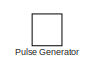
[diagram: root canvas - part 1/4, top left region]
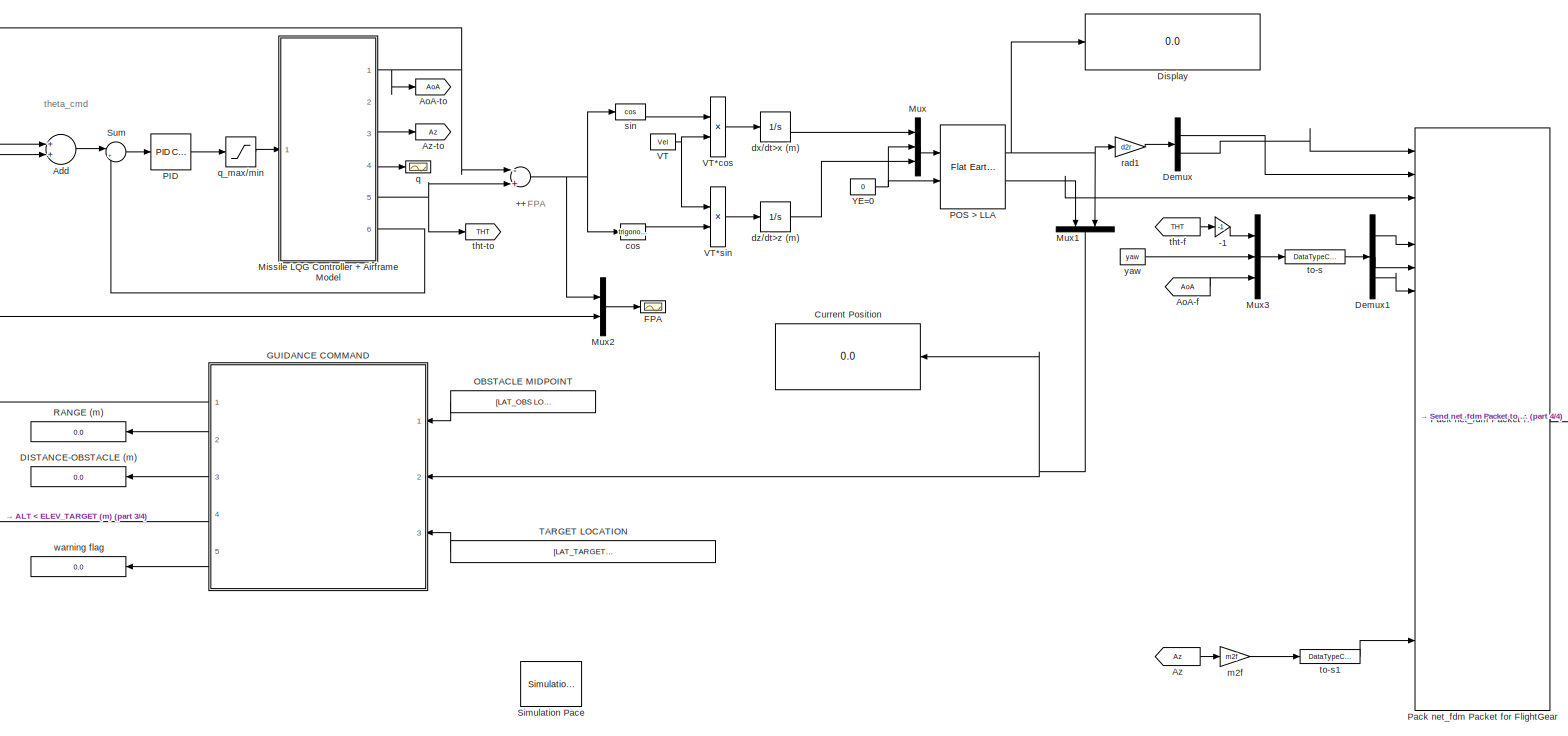
[diagram: root canvas - part 2/4, center side, full height]
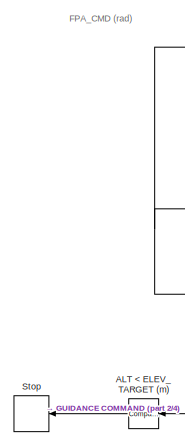
[diagram: root canvas - part 3/4, middle left region]
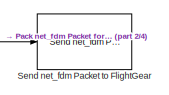
[diagram: root canvas - part 4/4, bottom right region]
MODEL slx_2eceb289d399
KIND model
CONFIG AbsTol = auto
CONFIG FixedStep = .01
CONFIG MaxStep = auto
CONFIG MinStep = auto
CONFIG RelTol = 1e-3
CONFIG SampleTimeConstraint = Unconstrained
CONFIG Solver = ode45
CONFIG SolverMode = Auto
CONFIG SolverName = ode45
CONFIG StartTime = 0.0
CONFIG StopTime = Inf
BLOCK [Sum] ++
  InputSameDT = off
  Inputs = -+
  OutDataTypeStr = Inherit: Inherit via internal rule
  Ports = [2, 1]
  SaturateOnIntegerOverflow = off
BLOCK [Gain] -1
  Gain = -1
  OutDataTypeStr = Inherit: Inherit via internal rule
  ParamDataTypeStr = Inherit: Inherit via internal rule
  SaturateOnIntegerOverflow = off
BLOCK [Reference] ALT < ELEV_TARGET (m)  REF=simulink/Logic and Bit
Operations/Compare
To Constant
  OutDataTypeStr = boolean
  Ports = [1, 1]
  SourceBlock = simulink/Logic and Bit\nOperations/Compare\nTo Constant
  SourceType = Compare To Constant
  ZeroCross = on
  const = ELEV_TARGET
  relop = <=
BLOCK [Sum] Add
  InputSameDT = off
  OutDataTypeStr = Inherit: Inherit via internal rule
  Ports = [2, 1]
  SaturateOnIntegerOverflow = off
BLOCK [From] AoA-f
  GotoTag = AoA
BLOCK [Goto] AoA-to
  GotoTag = AoA
BLOCK [From] Az
  GotoTag = Az
BLOCK [Goto] Az-to
  GotoTag = Az
BLOCK [Display] Current Position
  Decimation = 1
  Format = long
  Ports = [1]
BLOCK [Display] DISTANCE-OBSTACLE (m)
  Decimation = 1
  Ports = [1]
BLOCK [Demux] Demux
  DisplayOption = bar
  Outputs = 2
  Ports = [1, 2]
BLOCK [Demux] Demux1
  DisplayOption = bar
  Outputs = 3
  Ports = [1, 3]
BLOCK [Display] Display
  Decimation = 1
  Format = long
  Ports = [1]
BLOCK [Scope] FPA
  Floating = off
  LimitDataPoints = off
  NumInputPorts = 1
  Ports = [1]
  SaveName = ScopeData4
  TimeRange = 80
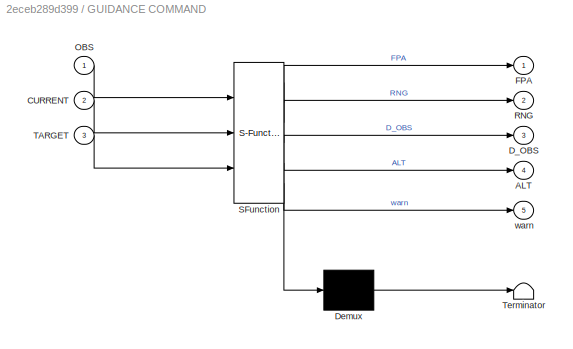
BLOCK [SubSystem] GUIDANCE COMMAND
  ErrorFcn = Stateflow.Translate.translate
  PermitHierarchicalResolution = ExplicitOnly
  Ports = [3, 5]
  RequestExecContextInheritance = off
  SFBlockType = MATLAB Function
  TreatAsAtomicUnit = on
BLOCK [Demux] GUIDANCE COMMAND/ Demux 
  Outputs = 1
  Ports = [1, 1]
BLOCK [S-Function] GUIDANCE COMMAND/ SFunction 
  EnableBusSupport = on
  FunctionName = sf_sfun
  PortCounts = [3 6]
  Ports = [3, 6]
  Tag = Stateflow S-Function simulink_model_FG 1
BLOCK [Terminator] GUIDANCE COMMAND/ Terminator 
BLOCK [Outport] GUIDANCE COMMAND/ALT
  IconDisplay = Port number
  Port = 4
BLOCK [Inport] GUIDANCE COMMAND/CURRENT
  IconDisplay = Port number
  Port = 2
BLOCK [Outport] GUIDANCE COMMAND/D_OBS
  IconDisplay = Port number
  Port = 3
BLOCK [Outport] GUIDANCE COMMAND/FPA
  IconDisplay = Port number
BLOCK [Inport] GUIDANCE COMMAND/OBS
  IconDisplay = Port number
BLOCK [Outport] GUIDANCE COMMAND/RNG
  IconDisplay = Port number
  Port = 2
BLOCK [Inport] GUIDANCE COMMAND/TARGET
  IconDisplay = Port number
  Port = 3
BLOCK [Outport] GUIDANCE COMMAND/warn
  IconDisplay = Port number
  Port = 5
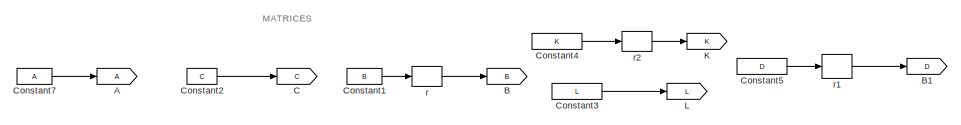
[diagram: Missile LQG Controller + Airframe Model - part 1/4, top center region]
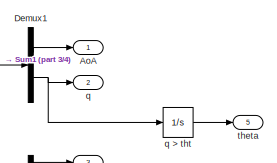
[diagram: Missile LQG Controller + Airframe Model - part 2/4, top right region]
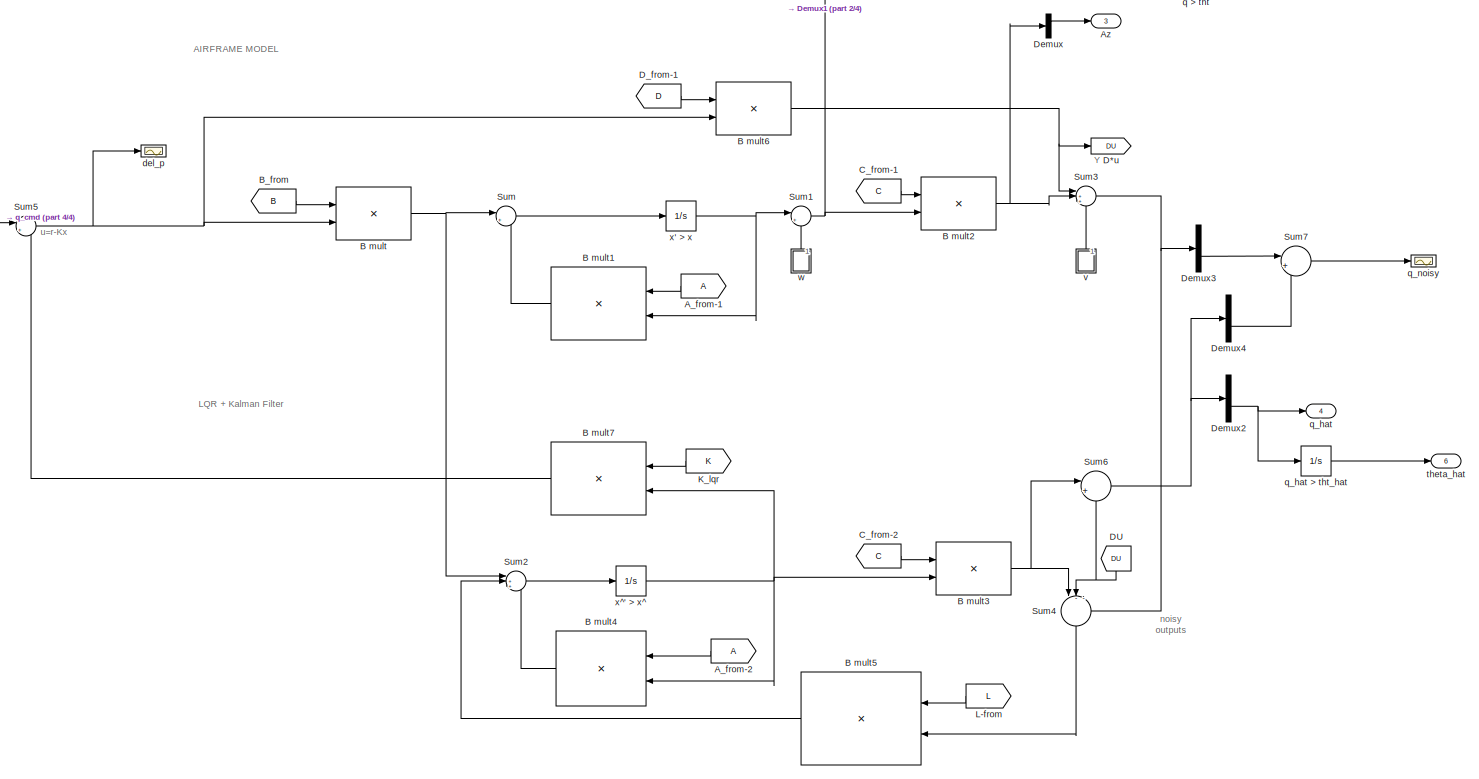
[diagram: Missile LQG Controller + Airframe Model - part 3/4, full width, middle band]
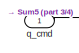
[diagram: Missile LQG Controller + Airframe Model - part 4/4, middle left region]
BLOCK [SubSystem] Missile LQG Controller + Airframe Model
  Ports = [1, 6]
  RequestExecContextInheritance = off
BLOCK [Goto] Missile LQG Controller + Airframe Model/A
BLOCK [From] Missile LQG Controller + Airframe Model/A_from-1
BLOCK [From] Missile LQG Controller + Airframe Model/A_from-2
BLOCK [Outport] Missile LQG Controller + Airframe Model/AoA
  IconDisplay = Port number
BLOCK [Outport] Missile LQG Controller + Airframe Model/Az
  IconDisplay = Port number
  Port = 3
BLOCK [Goto] Missile LQG Controller + Airframe Model/B
  GotoTag = B
BLOCK [Product] Missile LQG Controller + Airframe Model/B mult
  InputSameDT = off
  Multiplication = Matrix(*)
  OutDataTypeStr = Inherit: Inherit via internal rule
  Ports = [2, 1]
  SaturateOnIntegerOverflow = off
BLOCK [Product] Missile LQG Controller + Airframe Model/B mult1
  InputSameDT = off
  Multiplication = Matrix(*)
  OutDataTypeStr = Inherit: Inherit via internal rule
  Ports = [2, 1]
  SaturateOnIntegerOverflow = off
BLOCK [Product] Missile LQG Controller + Airframe Model/B mult2
  InputSameDT = off
  Multiplication = Matrix(*)
  OutDataTypeStr = Inherit: Inherit via internal rule
  Ports = [2, 1]
  SaturateOnIntegerOverflow = off
BLOCK [Product] Missile LQG Controller + Airframe Model/B mult3
  InputSameDT = off
  Multiplication = Matrix(*)
  OutDataTypeStr = Inherit: Inherit via internal rule
  Ports = [2, 1]
  SaturateOnIntegerOverflow = off
BLOCK [Product] Missile LQG Controller + Airframe Model/B mult4
  InputSameDT = off
  Multiplication = Matrix(*)
  OutDataTypeStr = Inherit: Inherit via internal rule
  Ports = [2, 1]
  SaturateOnIntegerOverflow = off
BLOCK [Product] Missile LQG Controller + Airframe Model/B mult5
  InputSameDT = off
  Multiplication = Matrix(*)
  OutDataTypeStr = Inherit: Inherit via internal rule
  Ports = [2, 1]
  SaturateOnIntegerOverflow = off
BLOCK [Product] Missile LQG Controller + Airframe Model/B mult6
  InputSameDT = off
  Multiplication = Matrix(*)
  OutDataTypeStr = Inherit: Inherit via internal rule
  Ports = [2, 1]
  SaturateOnIntegerOverflow = off
BLOCK [Product] Missile LQG Controller + Airframe Model/B mult7
  InputSameDT = off
  Multiplication = Matrix(*)
  OutDataTypeStr = Inherit: Inherit via internal rule
  Ports = [2, 1]
  SaturateOnIntegerOverflow = off
BLOCK [Goto] Missile LQG Controller + Airframe Model/B1
  GotoTag = D
BLOCK [From] Missile LQG Controller + Airframe Model/B_from
  GotoTag = B
BLOCK [Goto] Missile LQG Controller + Airframe Model/C
  GotoTag = C
BLOCK [From] Missile LQG Controller + Airframe Model/C_from-1
  GotoTag = C
BLOCK [From] Missile LQG Controller + Airframe Model/C_from-2
  GotoTag = C
BLOCK [Constant] Missile LQG Controller + Airframe Model/Constant1
  Value = B
BLOCK [Constant] Missile LQG Controller + Airframe Model/Constant2
  Value = C
BLOCK [Constant] Missile LQG Controller + Airframe Model/Constant3
  Value = L
BLOCK [Constant] Missile LQG Controller + Airframe Model/Constant4
  Value = K
BLOCK [Constant] Missile LQG Controller + Airframe Model/Constant5
  Value = D
BLOCK [Constant] Missile LQG Controller + Airframe Model/Constant7
  Value = A
BLOCK [Goto] Missile LQG Controller + Airframe Model/D*u
  GotoTag = DU
BLOCK [From] Missile LQG Controller + Airframe Model/DU
  GotoTag = DU
BLOCK [From] Missile LQG Controller + Airframe Model/D_from-1
  GotoTag = D
BLOCK [Demux] Missile LQG Controller + Airframe Model/Demux
  DisplayOption = bar
  Outputs = 2
  Ports = [1, 2]
BLOCK [Demux] Missile LQG Controller + Airframe Model/Demux1
  DisplayOption = bar
  Outputs = 2
  Ports = [1, 2]
BLOCK [Demux] Missile LQG Controller + Airframe Model/Demux2
  DisplayOption = bar
  Outputs = 2
  Ports = [1, 2]
BLOCK [Demux] Missile LQG Controller + Airframe Model/Demux3
  DisplayOption = bar
  Outputs = 2
  Ports = [1, 2]
BLOCK [Demux] Missile LQG Controller + Airframe Model/Demux4
  DisplayOption = bar
  Outputs = 2
  Ports = [1, 2]
BLOCK [Goto] Missile LQG Controller + Airframe Model/K
  GotoTag = K
BLOCK [From] Missile LQG Controller + Airframe Model/K_lqr
  GotoTag = K
BLOCK [Goto] Missile LQG Controller + Airframe Model/L
  GotoTag = L
BLOCK [From] Missile LQG Controller + Airframe Model/L-from
  GotoTag = L
BLOCK [Sum] Missile LQG Controller + Airframe Model/Sum
  IconShape = round
  InputSameDT = off
  Inputs = |++
  OutDataTypeStr = Inherit: Inherit via internal rule
  Ports = [2, 1]
  SaturateOnIntegerOverflow = off
BLOCK [Sum] Missile LQG Controller + Airframe Model/Sum1
  IconShape = round
  InputSameDT = off
  Inputs = |++
  OutDataTypeStr = Inherit: Inherit via internal rule
  Ports = [2, 1]
  SaturateOnIntegerOverflow = off
BLOCK [Sum] Missile LQG Controller + Airframe Model/Sum2
  IconShape = round
  InputSameDT = off
  Inputs = |+++
  OutDataTypeStr = Inherit: Inherit via internal rule
  Ports = [3, 1]
  SaturateOnIntegerOverflow = off
BLOCK [Sum] Missile LQG Controller + Airframe Model/Sum3
  IconShape = round
  InputSameDT = off
  Inputs = |+++
  OutDataTypeStr = Inherit: Inherit via internal rule
  Ports = [3, 1]
  SaturateOnIntegerOverflow = off
BLOCK [Sum] Missile LQG Controller + Airframe Model/Sum4
  IconShape = round
  InputSameDT = off
  Inputs = |--+
  OutDataTypeStr = Inherit: Inherit via internal rule
  Ports = [3, 1]
  SaturateOnIntegerOverflow = off
BLOCK [Sum] Missile LQG Controller + Airframe Model/Sum5
  IconShape = round
  InputSameDT = off
  Inputs = |+-
  OutDataTypeStr = Inherit: Inherit via internal rule
  Ports = [2, 1]
  SaturateOnIntegerOverflow = off
BLOCK [Sum] Missile LQG Controller + Airframe Model/Sum6
  IconShape = round
  InputSameDT = off
  Inputs = |++
  OutDataTypeStr = Inherit: Inherit via internal rule
  Ports = [2, 1]
  SaturateOnIntegerOverflow = off
BLOCK [Sum] Missile LQG Controller + Airframe Model/Sum7
  IconShape = round
  InputSameDT = off
  Inputs = |+-
  OutDataTypeStr = Inherit: Inherit via internal rule
  Ports = [2, 1]
  SaturateOnIntegerOverflow = off
BLOCK [Scope] Missile LQG Controller + Airframe Model/del_p
  Floating = off
  LimitDataPoints = off
  NumInputPorts = 1
  Ports = [1]
  TimeRange = 78
BLOCK [Outport] Missile LQG Controller + Airframe Model/q
  IconDisplay = Port number
  Port = 2
BLOCK [Integrator] Missile LQG Controller + Airframe Model/q > tht
  Ports = [1, 1]
BLOCK [Inport] Missile LQG Controller + Airframe Model/q_cmd
  IconDisplay = Port number
BLOCK [Outport] Missile LQG Controller + Airframe Model/q_hat
  IconDisplay = Port number
  Port = 4
BLOCK [Integrator] Missile LQG Controller + Airframe Model/q_hat > tht_hat
  Ports = [1, 1]
BLOCK [Scope] Missile LQG Controller + Airframe Model/q_noisy
  Floating = off
  LimitDataPoints = off
  NumInputPorts = 1
  Ports = [1]
  SaveName = ScopeData3
  TimeRange = 78
BLOCK [Reshape] Missile LQG Controller + Airframe Model/r
  OutputDimensionality = Customize
  OutputDimensions = [2,1]
  Ports = [1, 1]
BLOCK [Reshape] Missile LQG Controller + Airframe Model/r1
  OutputDimensionality = Customize
  OutputDimensions = [2,1]
  Ports = [1, 1]
BLOCK [Reshape] Missile LQG Controller + Airframe Model/r2
  OutputDimensionality = Customize
  OutputDimensions = [1,2]
  Ports = [1, 1]
BLOCK [Outport] Missile LQG Controller + Airframe Model/theta
  IconDisplay = Port number
  Port = 5
BLOCK [Outport] Missile LQG Controller + Airframe Model/theta_hat
  IconDisplay = Port number
  Port = 6
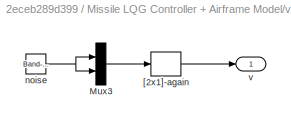
BLOCK [SubSystem] Missile LQG Controller + Airframe Model/v
  Ports = [0, 1]
  RequestExecContextInheritance = off
BLOCK [Mux] Missile LQG Controller + Airframe Model/v/Mux3
  DisplayOption = bar
  Inputs = 2
  Ports = [2, 1]
BLOCK [Reshape] Missile LQG Controller + Airframe Model/v/[2x1]-again
  OutputDimensionality = Customize
  OutputDimensions = [2,1]
  Ports = [1, 1]
BLOCK [Reference] Missile LQG Controller + Airframe Model/v/noise  REF=simulink/Sources/Band-Limited
White Noise
  Cov = [0.00001]
  Ports = [0, 1]
  SourceBlock = simulink/Sources/Band-Limited\nWhite Noise
  SourceType = Band-Limited White Noise.
  Ts = dT2
  VectorParams1D = on
  seed = [23341]
BLOCK [Outport] Missile LQG Controller + Airframe Model/v/v
  IconDisplay = Port number
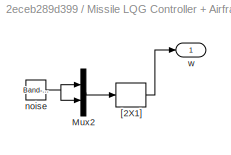
BLOCK [SubSystem] Missile LQG Controller + Airframe Model/w
  Ports = [0, 1]
  RequestExecContextInheritance = off
BLOCK [Mux] Missile LQG Controller + Airframe Model/w/Mux2
  DisplayOption = bar
  Inputs = 2
  Ports = [2, 1]
BLOCK [Reshape] Missile LQG Controller + Airframe Model/w/[2X1]
  OutputDimensionality = Customize
  OutputDimensions = [2,1]
  Ports = [1, 1]
BLOCK [Reference] Missile LQG Controller + Airframe Model/w/noise  REF=simulink/Sources/Band-Limited
White Noise
  Cov = 0.00000001
  Ports = [0, 1]
  SourceBlock = simulink/Sources/Band-Limited\nWhite Noise
  SourceType = Band-Limited White Noise.
  Ts = dT1
  VectorParams1D = on
  seed = [23341]
BLOCK [Outport] Missile LQG Controller + Airframe Model/w/w
  IconDisplay = Port number
BLOCK [Integrator] Missile LQG Controller + Airframe Model/x' > x
  Ports = [1, 1]
BLOCK [Integrator] Missile LQG Controller + Airframe Model/x^' > x^
  InitialCondition = [0.01;0.01]
  Ports = [1, 1]
BLOCK [Mux] Mux
  DisplayOption = bar
  Inputs = 3
  Ports = [3, 1]
BLOCK [Mux] Mux1
  DisplayOption = bar
  Inputs = 2
  Ports = [2, 1]
BLOCK [Mux] Mux2
  DisplayOption = bar
  Inputs = 2
  Ports = [2, 1]
BLOCK [Mux] Mux3
  DisplayOption = bar
  Inputs = 3
  Ports = [3, 1]
BLOCK [Constant] OBSTACLE MIDPOINT
  Value = [LAT_OBS LON_OBS]
BLOCK [Reference] PID  REF=simulink/Continuous/PID Controller
  AntiWindupMode = none
  Controller = PID
  ControllerParametersSource = internal
  D = 0
  DGainOutDataTypeStr = Inherit: Inherit via internal rule
  DOutDataTypeStr = Inherit: Inherit via internal rule
  DOutMax = []
  DOutMin = []
  DParamDataTypeStr = Inherit: Inherit via internal rule
  DParamMax = []
  DParamMin = []
  DProdOutDataTypeStr = Inherit: Inherit via internal rule
  DifferentiatorICPrevScaledInput = 0
  DifferentiatorOutDataTypeStr = Inherit: Inherit via internal rule
  DifferentiatorOutMax = []
  DifferentiatorOutMin = []
  ExternalReset = none
  FilterContinuousStateAttributes = ''
  FilterMethod = Forward Euler
  FilterOutDataTypeStr = Inherit: Inherit via internal rule
  FilterOutMax = []
  FilterOutMin = []
  FilterRTWStateStorageClass = Auto
  FilterStateMustResolveToSignalObject = off
  Form = Parallel
  I = 0
  IGainOutDataTypeStr = Inherit: Inherit via internal rule
  IOutDataTypeStr = Inherit: Inherit via internal rule
  IOutMax = []
  IOutMin = []
  IParamDataTypeStr = Inherit: Inherit via internal rule
  IParamMax = []
  IParamMin = []
  IProdOutDataTypeStr = Inherit: Inherit via internal rule
  IgnoreLimit = off
  InitialConditionForFilter = 0
  InitialConditionForIntegrator = 0
  InitialConditionSource = internal
  IntegratorContinuousStateAttributes = ''
  IntegratorMethod = Forward Euler
  IntegratorOutDataTypeStr = Inherit: Inherit via internal rule
  IntegratorOutMax = []
  IntegratorOutMin = []
  IntegratorRTWStateStorageClass = Auto
  IntegratorStateMustResolveToSignalObject = off
  Kb = 1
  KbOutDataTypeStr = Inherit: Inherit via internal rule
  KbOutMax = []
  KbOutMin = []
  KbParamDataTypeStr = Inherit: Inherit via internal rule
  KbParamMax = []
  KbParamMin = []
  Kt = 1
  KtOutDataTypeStr = Inherit: Inherit via internal rule
  KtOutMax = []
  KtOutMin = []
  KtParamDataTypeStr = Inherit: Inherit via internal rule
  KtParamMax = []
  KtParamMin = []
  LimitOutput = off
  LinearizeAsGain = on
  LockScale = off
  LowerSaturationLimit = -inf
  N = 100
  NGainOutDataTypeStr = Inherit: Inherit via internal rule
  NOutDataTypeStr = Inherit: Inherit via internal rule
  NOutMax = []
  NOutMin = []
  NParamDataTypeStr = Inherit: Inherit via internal rule
  NParamMax = []
  NParamMin = []
  NProdOutDataTypeStr = Inherit: Inherit via internal rule
  P = -1.0
  PGainOutDataTypeStr = Inherit: Inherit via internal rule
  POutDataTypeStr = Inherit: Inherit via internal rule
  POutMax = []
  POutMin = []
  PParamDataTypeStr = Inherit: Inherit via internal rule
  PParamMax = []
  PParamMin = []
  PProdOutDataTypeStr = Inherit: Inherit via internal rule
  Ports = [1, 1]
  RndMeth = Floor
  SampleTime = -1
  SaturateOnIntegerOverflow = off
  SaturationOutDataTypeStr = Inherit: Same as input
  SaturationOutMax = []
  SaturationOutMin = []
  SourceBlock = simulink/Continuous/PID Controller
  SourceType = PID 1dof
  SumAccumDataTypeStr = Inherit: Inherit via internal rule
  SumDAccumDataTypeStr = Inherit: Inherit via internal rule
  SumDOutDataTypeStr = Inherit: Inherit via internal rule
  SumDOutMax = []
  SumDOutMin = []
  SumI1AccumDataTypeStr = Inherit: Inherit via internal rule
  SumI1OutDataTypeStr = Inherit: Inherit via internal rule
  SumI1OutMax = []
  SumI1OutMin = []
  SumI2AccumDataTypeStr = Inherit: Inherit via internal rule
  SumI2OutDataTypeStr = Inherit: Inherit via internal rule
  SumI2OutMax = []
  SumI2OutMin = []
  SumI3AccumDataTypeStr = Inherit: Inherit via internal rule
  SumI3OutDataTypeStr = Inherit: Inherit via internal rule
  SumI3OutMax = []
  SumI3OutMin = []
  SumOutDataTypeStr = Inherit: Inherit via internal rule
  SumOutMax = []
  SumOutMin = []
  TimeDomain = Continuous-time
  TrackingMode = off
  UpperSaturationLimit = inf
  UseFilter = on
  ZeroCross = on
BLOCK [Reference] POS > LLA  REF=aerolibtransform2/Flat Earth to LLA
  F = 1/298.257223563
  LL0 = [LAT_INIT LON_INIT]
  Ports = [2, 2]
  R = 6378137
  SourceBlock = aerolibtransform2/Flat Earth to LLA
  SourceType = Flat Earth to LLA
  psi = yaw_init
  ptype = Earth (WGS84)
  units = Metric (MKS)
BLOCK [Reference] Pack net_fdm Packet for FlightGear  REF=aerolibfltsims/Pack
net_fdm Packet
for FlightGear
  AttributesFormatString = Version Selected: %<FlightGearVersion>
  FlightGearVersion = v3.0
  Ports = [24, 1]
  SampleTime = 1/30
  ShowControlSurfacePositionInputs = off
  ShowEngineFuelInputs = off
  ShowEnvironmentInputs = off
  ShowLandingGearInputs = off
  ShowPositionAttitudeInputs = on
  ShowVelocityAccelerationInputs = on
  SourceBlock = aerolibfltsims/Pack\nnet_fdm Packet\nfor FlightGear
  SourceType = FlightGearPackNetFdm
BLOCK [DiscretePulseGenerator] Pulse Generator
  Amplitude = 0.75
  Commented = on
  Period = 60
  Ports = [0, 1]
  PulseType = Time based
  PulseWidth = 50
BLOCK [Display] RANGE (m)
  Decimation = 1
  Ports = [1]
BLOCK [Reference] Send net_fdm Packet to FlightGear  REF=aerolibfltsims/Send
net_fdm Packet
to FlightGear
  DestinationIpAddress = 127.0.0.1
  DestinationPort = 5502
  LocalIpPort = -1
  Ports = [1]
  SampleTime = 1/30
  SourceBlock = aerolibfltsims/Send\nnet_fdm Packet\nto FlightGear
  SourceType = FlightGearSendNetFdm
  varLen = off
BLOCK [Reference] Simulation Pace  REF=aerolibanimutils/Simulation Pace
  AttributesFormatString = %<SimulationPace> sec/sec
  OutputPaceError = off
  Ports = []
  SampleTime = 1/30
  SimulationPace = 1
  SleepMode = MATLAB Thread
  SourceBlock = aerolibanimutils/Simulation Pace
  SourceType = Simulation Pace
BLOCK [Stop] Stop
BLOCK [Sum] Sum
  IconShape = round
  InputSameDT = off
  Inputs = |+-
  OutDataTypeStr = Inherit: Inherit via internal rule
  Ports = [2, 1]
  SaturateOnIntegerOverflow = off
BLOCK [Constant] TARGET LOCATION
  Value = [LAT_TARGET LON_TARGET ELEV_TARGET]
BLOCK [Constant] VT
  Value = Vel
BLOCK [Product] VT*cos
  InputSameDT = off
  OutDataTypeStr = Inherit: Inherit via internal rule
  Ports = [2, 1]
  RndMeth = Floor
  SaturateOnIntegerOverflow = off
BLOCK [Product] VT*sin
  InputSameDT = off
  OutDataTypeStr = Inherit: Inherit via internal rule
  Ports = [2, 1]
  RndMeth = Floor
  SaturateOnIntegerOverflow = off
BLOCK [Constant] YE=0
  Value = 0
BLOCK [Trigonometry] cos
  Ports = [1, 1]
BLOCK [Integrator] dx//dt>x (m)
  Ports = [1, 1]
BLOCK [Integrator] dz//dt>z (m)
  InitialCondition = -ELEV_INIT
  Ports = [1, 1]
BLOCK [Gain] m2f
  Gain = m2f
  OutDataTypeStr = Inherit: Inherit via internal rule
  ParamDataTypeStr = Inherit: Inherit via internal rule
  SaturateOnIntegerOverflow = off
BLOCK [Scope] q
  Floating = off
  LimitDataPoints = off
  NumInputPorts = 1
  Ports = [1]
  SaveName = ScopeData1
  TimeRange = 78
BLOCK [Saturate] q_max//min
  InputPortMap = u0
  Ports = [1, 1]
BLOCK [Gain] rad1
  Gain = d2r
  OutDataTypeStr = Inherit: Inherit via internal rule
  ParamDataTypeStr = Inherit: Inherit via internal rule
  SaturateOnIntegerOverflow = off
BLOCK [Trigonometry] sin
  Operator = cos
  Ports = [1, 1]
BLOCK [From] tht-f
  GotoTag = THT
BLOCK [Goto] tht-to
  GotoTag = THT
BLOCK [DataTypeConversion] to-s
  OutDataTypeStr = single
  RndMeth = Floor
  SaturateOnIntegerOverflow = off
BLOCK [DataTypeConversion] to-s1
  OutDataTypeStr = single
  RndMeth = Floor
  SaturateOnIntegerOverflow = off
BLOCK [Display] warning flag
  Decimation = 1
  Ports = [1]
BLOCK [Constant] yaw
  Value = yaw
ANNOTATION (root): FPA
ANNOTATION (root): FPA_CMD (rad)
ANNOTATION (root): theta_cmd
ANNOTATION Missile LQG Controller + Airframe Model: noisy outputs
ANNOTATION Missile LQG Controller + Airframe Model: MATRICES
ANNOTATION Missile LQG Controller + Airframe Model: AIRFRAME MODEL
ANNOTATION Missile LQG Controller + Airframe Model: LQR + Kalman Filter
ANNOTATION Missile LQG Controller + Airframe Model: Y
ANNOTATION Missile LQG Controller + Airframe Model: u=r-Kx
NET ++:1 -> Mux2:1, cos:1, sin:1
LINE -1:1 -> Mux3:1
LINE ALT < ELEV_TARGET (m):1 -> Stop:1
LINE Add:1 -> Sum:1
LINE AoA-f:1 -> Mux3:3
LINE Az:1 -> m2f:1
LINE Demux1:1 -> Pack net_fdm Packet for FlightGear:5
LINE Demux1:2 -> Pack net_fdm Packet for FlightGear:6
LINE Demux1:3 -> Pack net_fdm Packet for FlightGear:7
LINE Demux:1 -> Pack net_fdm Packet for FlightGear:2
LINE Demux:2 -> Pack net_fdm Packet for FlightGear:1
NET GUIDANCE COMMAND:1 -> Add:2, Mux2:2
LINE GUIDANCE COMMAND:2 -> RANGE (m):1
LINE GUIDANCE COMMAND:3 -> DISTANCE-OBSTACLE (m):1
LINE GUIDANCE COMMAND:4 -> ALT < ELEV_TARGET (m):1
LINE GUIDANCE COMMAND:5 -> warning flag:1
LINE Missile LQG Controller + Airframe Model/A_from-1:1 -> Missile LQG Controller + Airframe Model/B mult1:1
LINE Missile LQG Controller + Airframe Model/A_from-2:1 -> Missile LQG Controller + Airframe Model/B mult4:1
LINE Missile LQG Controller + Airframe Model/B mult1:1 -> Missile LQG Controller + Airframe Model/Sum:2
NET Missile LQG Controller + Airframe Model/B mult2:1 -> Missile LQG Controller + Airframe Model/Demux:1, Missile LQG Controller + Airframe Model/Sum3:2
NET Missile LQG Controller + Airframe Model/B mult3:1 -> Missile LQG Controller + Airframe Model/Sum4:1, Missile LQG Controller + Airframe Model/Sum6:1
LINE Missile LQG Controller + Airframe Model/B mult4:1 -> Missile LQG Controller + Airframe Model/Sum2:3
LINE Missile LQG Controller + Airframe Model/B mult5:1 -> Missile LQG Controller + Airframe Model/Sum2:2
NET Missile LQG Controller + Airframe Model/B mult6:1 -> Missile LQG Controller + Airframe Model/D*u:1, Missile LQG Controller + Airframe Model/Sum3:1
LINE Missile LQG Controller + Airframe Model/B mult7:1 -> Missile LQG Controller + Airframe Model/Sum5:2
NET Missile LQG Controller + Airframe Model/B mult:1 -> Missile LQG Controller + Airframe Model/Sum2:1, Missile LQG Controller + Airframe Model/Sum:1
LINE Missile LQG Controller + Airframe Model/B_from:1 -> Missile LQG Controller + Airframe Model/B mult:1
LINE Missile LQG Controller + Airframe Model/C_from-1:1 -> Missile LQG Controller + Airframe Model/B mult2:1
LINE Missile LQG Controller + Airframe Model/C_from-2:1 -> Missile LQG Controller + Airframe Model/B mult3:1
LINE Missile LQG Controller + Airframe Model/Constant1:1 -> Missile LQG Controller + Airframe Model/r:1
LINE Missile LQG Controller + Airframe Model/Constant2:1 -> Missile LQG Controller + Airframe Model/C:1
LINE Missile LQG Controller + Airframe Model/Constant3:1 -> Missile LQG Controller + Airframe Model/L:1
LINE Missile LQG Controller + Airframe Model/Constant4:1 -> Missile LQG Controller + Airframe Model/r2:1
LINE Missile LQG Controller + Airframe Model/Constant5:1 -> Missile LQG Controller + Airframe Model/r1:1
LINE Missile LQG Controller + Airframe Model/Constant7:1 -> Missile LQG Controller + Airframe Model/A:1
NET Missile LQG Controller + Airframe Model/DU:1 -> Missile LQG Controller + Airframe Model/Sum4:2, Missile LQG Controller + Airframe Model/Sum6:2
LINE Missile LQG Controller + Airframe Model/D_from-1:1 -> Missile LQG Controller + Airframe Model/B mult6:1
LINE Missile LQG Controller + Airframe Model/Demux1:1 -> Missile LQG Controller + Airframe Model/AoA:1
NET Missile LQG Controller + Airframe Model/Demux1:2 -> Missile LQG Controller + Airframe Model/q > tht:1, Missile LQG Controller + Airframe Model/q:1
NET Missile LQG Controller + Airframe Model/Demux2:2 -> Missile LQG Controller + Airframe Model/q_hat > tht_hat:1, Missile LQG Controller + Airframe Model/q_hat:1
LINE Missile LQG Controller + Airframe Model/Demux3:2 -> Missile LQG Controller + Airframe Model/Sum7:1
LINE Missile LQG Controller + Airframe Model/Demux4:2 -> Missile LQG Controller + Airframe Model/Sum7:2
LINE Missile LQG Controller + Airframe Model/Demux:1 -> Missile LQG Controller + Airframe Model/Az:1
LINE Missile LQG Controller + Airframe Model/K_lqr:1 -> Missile LQG Controller + Airframe Model/B mult7:1
LINE Missile LQG Controller + Airframe Model/L-from:1 -> Missile LQG Controller + Airframe Model/B mult5:1
NET Missile LQG Controller + Airframe Model/Sum1:1 -> Missile LQG Controller + Airframe Model/B mult2:2, Missile LQG Controller + Airframe Model/Demux1:1
LINE Missile LQG Controller + Airframe Model/Sum2:1 -> Missile LQG Controller + Airframe Model/x^' > x^:1
NET Missile LQG Controller + Airframe Model/Sum3:1 -> Missile LQG Controller + Airframe Model/Demux3:1, Missile LQG Controller + Airframe Model/Sum4:3
LINE Missile LQG Controller + Airframe Model/Sum4:1 -> Missile LQG Controller + Airframe Model/B mult5:2
NET Missile LQG Controller + Airframe Model/Sum5:1 -> Missile LQG Controller + Airframe Model/B mult6:2, Missile LQG Controller + Airframe Model/B mult:2, Missile LQG Controller + Airframe Model/del_p:1
NET Missile LQG Controller + Airframe Model/Sum6:1 -> Missile LQG Controller + Airframe Model/Demux2:1, Missile LQG Controller + Airframe Model/Demux4:1
LINE Missile LQG Controller + Airframe Model/Sum7:1 -> Missile LQG Controller + Airframe Model/q_noisy:1
LINE Missile LQG Controller + Airframe Model/Sum:1 -> Missile LQG Controller + Airframe Model/x' > x:1
LINE Missile LQG Controller + Airframe Model/q > tht:1 -> Missile LQG Controller + Airframe Model/theta:1
LINE Missile LQG Controller + Airframe Model/q_cmd:1 -> Missile LQG Controller + Airframe Model/Sum5:1
LINE Missile LQG Controller + Airframe Model/q_hat > tht_hat:1 -> Missile LQG Controller + Airframe Model/theta_hat:1
LINE Missile LQG Controller + Airframe Model/r1:1 -> Missile LQG Controller + Airframe Model/B1:1
LINE Missile LQG Controller + Airframe Model/r2:1 -> Missile LQG Controller + Airframe Model/K:1
LINE Missile LQG Controller + Airframe Model/r:1 -> Missile LQG Controller + Airframe Model/B:1
LINE Missile LQG Controller + Airframe Model/v/Mux3:1 -> Missile LQG Controller + Airframe Model/v/[2x1]-again:1
LINE Missile LQG Controller + Airframe Model/v/[2x1]-again:1 -> Missile LQG Controller + Airframe Model/v/v:1
NET Missile LQG Controller + Airframe Model/v/noise:1 -> Missile LQG Controller + Airframe Model/v/Mux3:1, Missile LQG Controller + Airframe Model/v/Mux3:2
LINE Missile LQG Controller + Airframe Model/v:1 -> Missile LQG Controller + Airframe Model/Sum3:3
LINE Missile LQG Controller + Airframe Model/w/Mux2:1 -> Missile LQG Controller + Airframe Model/w/[2X1]:1
LINE Missile LQG Controller + Airframe Model/w/[2X1]:1 -> Missile LQG Controller + Airframe Model/w/w:1
NET Missile LQG Controller + Airframe Model/w/noise:1 -> Missile LQG Controller + Airframe Model/w/Mux2:1, Missile LQG Controller + Airframe Model/w/Mux2:2
LINE Missile LQG Controller + Airframe Model/w:1 -> Missile LQG Controller + Airframe Model/Sum1:2
NET Missile LQG Controller + Airframe Model/x' > x:1 -> Missile LQG Controller + Airframe Model/B mult1:2, Missile LQG Controller + Airframe Model/Sum1:1
NET Missile LQG Controller + Airframe Model/x^' > x^:1 -> Missile LQG Controller + Airframe Model/B mult3:2, Missile LQG Controller + Airframe Model/B mult4:2, Missile LQG Controller + Airframe Model/B mult7:2
NET Missile LQG Controller + Airframe Model:1 -> ++:1, Add:1, AoA-to:1
LINE Missile LQG Controller + Airframe Model:3 -> Az-to:1
LINE Missile LQG Controller + Airframe Model:4 -> q:1
NET Missile LQG Controller + Airframe Model:5 -> ++:2, tht-to:1
LINE Missile LQG Controller + Airframe Model:6 -> Sum:2
NET Mux1:1 -> Current Position:1, GUIDANCE COMMAND:2
LINE Mux2:1 -> FPA:1
LINE Mux3:1 -> to-s:1
LINE Mux:1 -> POS > LLA:1
LINE OBSTACLE MIDPOINT:1 -> GUIDANCE COMMAND:1
LINE PID:1 -> q_max//min:1
NET POS > LLA:1 -> Display:1, Mux1:2, rad1:1
NET POS > LLA:2 -> Mux1:1, Pack net_fdm Packet for FlightGear:3
LINE Pack net_fdm Packet for FlightGear:1 -> Send net_fdm Packet to FlightGear:1
LINE Sum:1 -> PID:1
LINE TARGET LOCATION:1 -> GUIDANCE COMMAND:3
LINE VT*cos:1 -> dx//dt>x (m):1
LINE VT*sin:1 -> dz//dt>z (m):1
NET VT:1 -> VT*cos:2, VT*sin:1
NET YE=0:1 -> Mux:2, POS > LLA:2
LINE cos:1 -> VT*sin:2
LINE dx//dt>x (m):1 -> Mux:1
LINE dz//dt>z (m):1 -> Mux:3
LINE m2f:1 -> to-s1:1
LINE q_max//min:1 -> Missile LQG Controller + Airframe Model:1
LINE rad1:1 -> Demux:1
LINE sin:1 -> VT*cos:1
LINE tht-f:1 -> -1:1
LINE to-s1:1 -> Pack net_fdm Packet for FlightGear:22
LINE to-s:1 -> Demux1:1
LINE yaw:1 -> Mux3:2
note: NET lines group one-source signal fan-out (src -> all destinations, sorted); 1:1 wires keep LINE
CHART GUIDANCE COMMAND states=1 transitions=1
  STATE_LABEL 'eML_blk_kernel()'
  STATE_LABEL 'SCRIPT:\nfunction [FPA,RNG,D_OBS,ALT,warn]= FPA(OBS, CURRENT, TARGET)\n%#codegen\n\nR = 6371e3; %earth radius (m)\nd2r = pi/180;\n\n%OBSTACLE LOCATION\nLAT_OBS = OBS(1);\nLON_OBS = OBS(2);\n\n%OBSTACLE THRESHOLD (m)\nthres = 2000;\n\n%TARGET location\nLAT_TARGET = TARGET(1);\nLON_TARGET = TARGET(2);\nELEV_TARGET = TARGET(3); %m - MSL\n\n%CURRENT location\nLAT_CUR = CURRENT(2);\nLON_CUR = CURRENT(3);\nELEV_CUR = CURRENT...<+954ch>'
